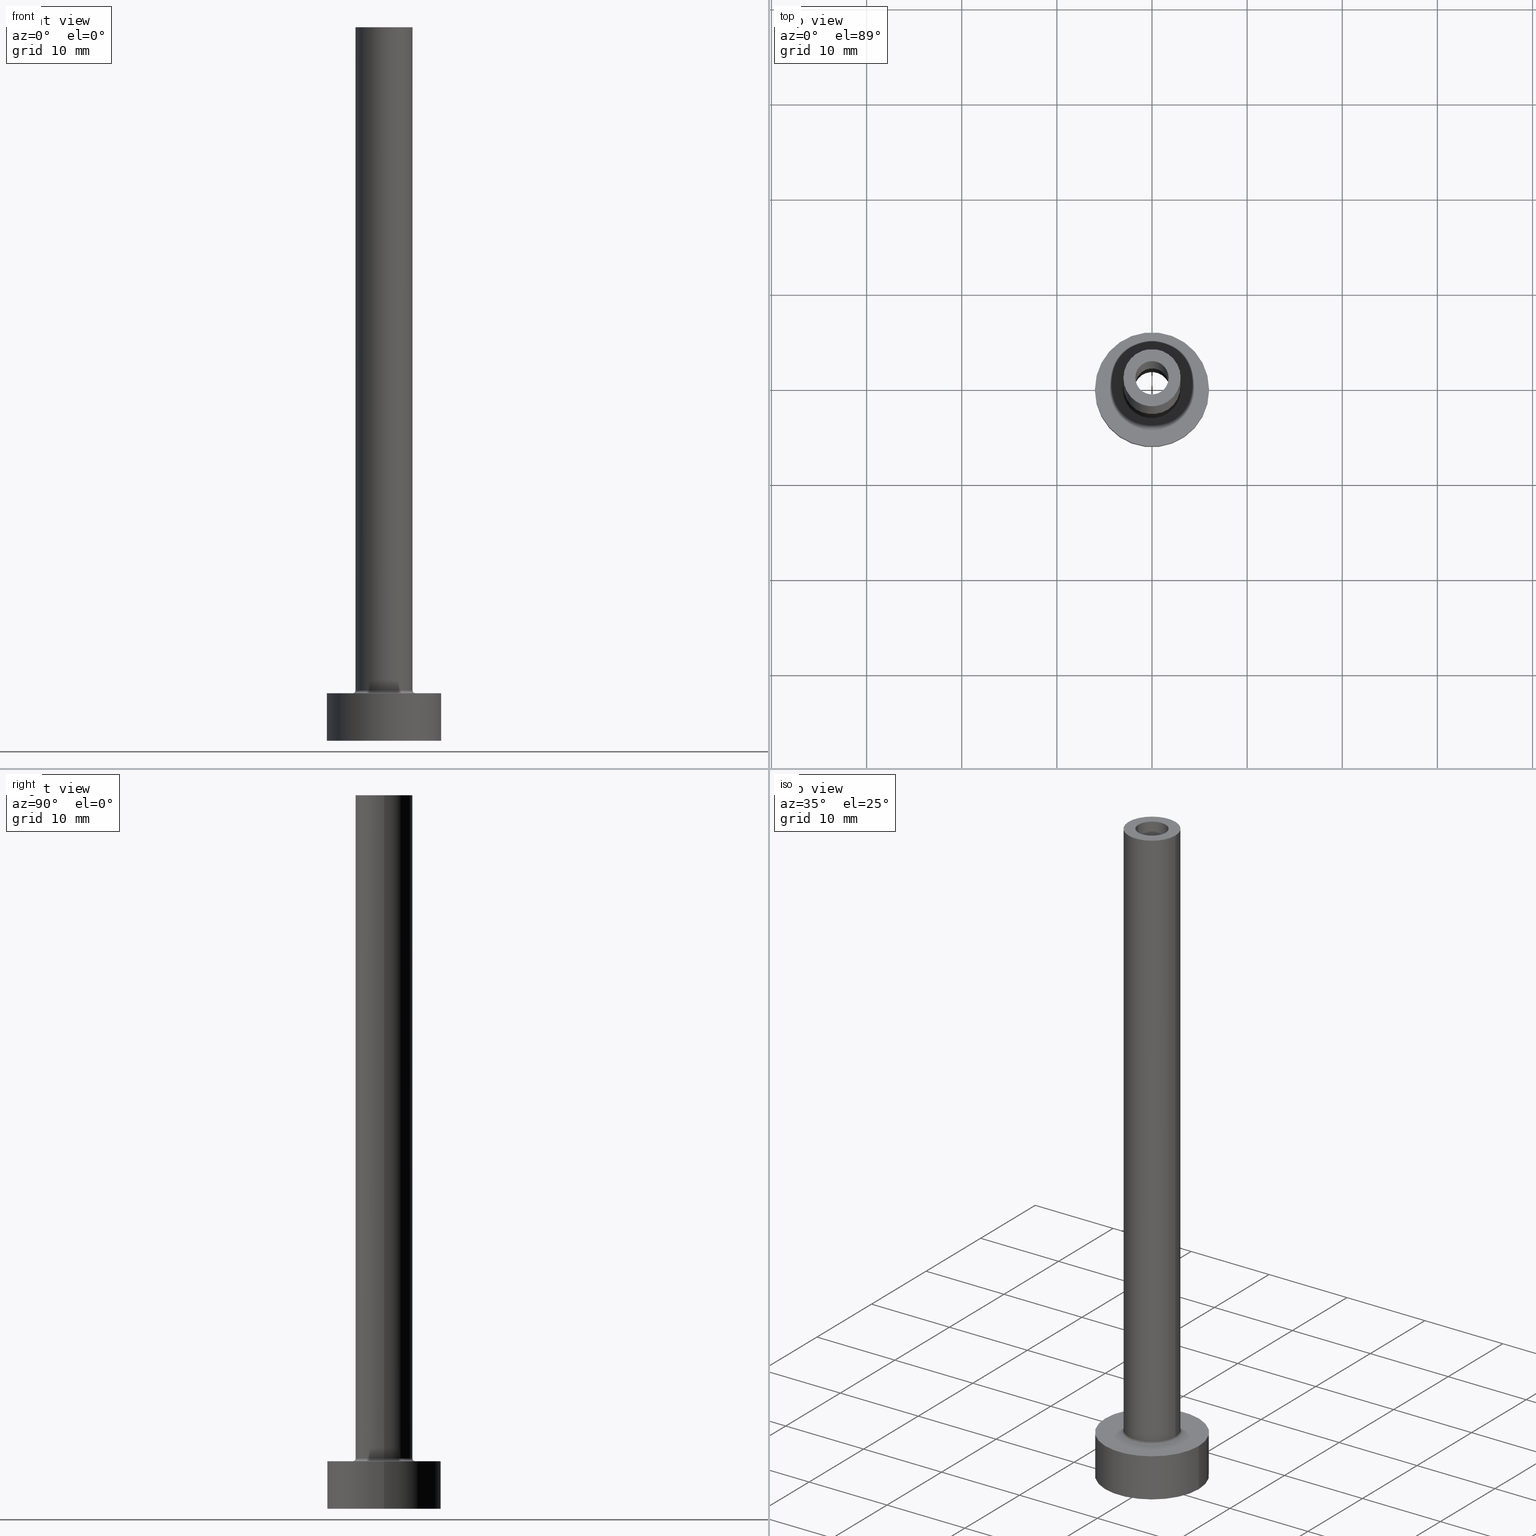
[diagram: canonical four-view strip — front | top / right | iso, engineering-drawing reading convention]
A machine part, canonical four-view strip (front | top / right | iso — engineering-drawing reading convention). The complete STEP part file that produces these views, byte-faithful:
ISO-10303-21;
HEADER;
FILE_DESCRIPTION (( 'STEP AP203' ),
    '1' );
FILE_NAME ('1971.STEP',
    '2023-02-13T12:01:50',
    ( '' ),
    ( '' ),
    'SwSTEP 2.0',
    'SolidWorks 2019',
    '' );
FILE_SCHEMA (( 'CONFIG_CONTROL_DESIGN' ));
ENDSEC;

DATA;
#1 = ADVANCED_FACE ( 'NONE', ( #296 ), #265, .F. ) ;
#2 = EDGE_CURVE ( 'NONE', #196, #254, #279, .T. ) ;
#3 = CARTESIAN_POINT ( 'NONE',  ( 1.750000000000000000, 2.143131898507867804E-16, 75.00000000000001421 ) ) ;
#4 = AXIS2_PLACEMENT_3D ( 'NONE', #121, #11, #15 ) ;
#5 = FACE_OUTER_BOUND ( 'NONE', #209, .T. ) ;
#6 = ORIENTED_EDGE ( 'NONE', *, *, #444, .T. ) ;
#7 = CARTESIAN_POINT ( 'NONE',  ( 0.000000000000000000, 0.000000000000000000, 5.000000000000000000 ) ) ;
#8 = VERTEX_POINT ( 'NONE', #87 ) ;
#9 = FACE_OUTER_BOUND ( 'NONE', #369, .T. ) ;
#10 = VERTEX_POINT ( 'NONE', #222 ) ;
#11 = DIRECTION ( 'NONE',  ( 0.000000000000000000, 0.000000000000000000, 1.000000000000000000 ) ) ;
#12 = ORIENTED_EDGE ( 'NONE', *, *, #421, .T. ) ;
#13 = DIRECTION ( 'NONE',  ( 0.000000000000000000, 0.000000000000000000, 1.000000000000000000 ) ) ;
#14 = EDGE_LOOP ( 'NONE', ( #261, #74, #185, #325 ) ) ;
#15 = DIRECTION ( 'NONE',  ( 1.000000000000000000, 0.000000000000000000, 0.000000000000000000 ) ) ;
#16 = ORIENTED_EDGE ( 'NONE', *, *, #89, .T. ) ;
#17 = VECTOR ( 'NONE', #292, 1000.000000000000000 ) ;
#18 = DIRECTION ( 'NONE',  ( -0.000000000000000000, -0.000000000000000000, -1.000000000000000000 ) ) ;
#19 = VERTEX_POINT ( 'NONE', #227 ) ;
#20 = ORIENTED_EDGE ( 'NONE', *, *, #143, .T. ) ;
#21 = DIRECTION ( 'NONE',  ( 0.000000000000000000, 0.000000000000000000, 1.000000000000000000 ) ) ;
#22 = PERSON_AND_ORGANIZATION ( #220, #165 ) ;
#23 = CIRCLE ( 'NONE', #321, 3.000000000000000444 ) ;
#24 = PLANE ( 'NONE',  #327 ) ;
#25 = APPROVAL_STATUS ( 'not_yet_approved' ) ;
#26 = DIRECTION ( 'NONE',  ( 1.000000000000000000, 0.000000000000000000, 0.000000000000000000 ) ) ;
#27 = EDGE_CURVE ( 'NONE', #217, #376, #436, .T. ) ;
#28 = CC_DESIGN_PERSON_AND_ORGANIZATION_ASSIGNMENT ( #300, #406, ( #117 ) ) ;
#29 = CALENDAR_DATE ( 2023, 13, 2 ) ;
#30 = DIRECTION ( 'NONE',  ( 0.000000000000000000, 0.000000000000000000, 1.000000000000000000 ) ) ;
#31 = PERSON_AND_ORGANIZATION_ROLE ( 'creator' ) ;
#32 = DIRECTION ( 'NONE',  ( 0.000000000000000000, 0.000000000000000000, -1.000000000000000000 ) ) ;
#33 = APPROVAL_PERSON_ORGANIZATION ( #226, #259, #56 ) ;
#34 = CC_DESIGN_DATE_AND_TIME_ASSIGNMENT ( #162, #133, ( #149 ) ) ;
#35 = FACE_OUTER_BOUND ( 'NONE', #114, .T. ) ;
#36 = ADVANCED_FACE ( 'NONE', ( #332, #157 ), #203, .T. ) ;
#37 = DIRECTION ( 'NONE',  ( 0.000000000000000000, 0.000000000000000000, 1.000000000000000000 ) ) ;
#38 = ORIENTED_EDGE ( 'NONE', *, *, #343, .T. ) ;
#39 = CARTESIAN_POINT ( 'NONE',  ( -6.000000000000000888, 0.000000000000000000, 5.000000000000000000 ) ) ;
#40 = AXIS2_PLACEMENT_3D ( 'NONE', #389, #178, #322 ) ;
#41 = AXIS2_PLACEMENT_3D ( 'NONE', #181, #255, #50 ) ;
#42 = CYLINDRICAL_SURFACE ( 'NONE', #345, 6.000000000000000888 ) ;
#43 = DIRECTION ( 'NONE',  ( 0.000000000000000000, 0.000000000000000000, -1.000000000000000000 ) ) ;
#44 = ORIENTED_EDGE ( 'NONE', *, *, #189, .F. ) ;
#45 = ADVANCED_FACE ( 'NONE', ( #382, #96 ), #197, .F. ) ;
#46 = FACE_OUTER_BOUND ( 'NONE', #193, .T. ) ;
#47 = ORIENTED_EDGE ( 'NONE', *, *, #392, .F. ) ;
#48 = AXIS2_PLACEMENT_3D ( 'NONE', #260, #18, #302 ) ;
#49 = ORIENTED_EDGE ( 'NONE', *, *, #109, .F. ) ;
#50 = DIRECTION ( 'NONE',  ( 1.000000000000000000, 0.000000000000000000, 0.000000000000000000 ) ) ;
#51 = ORIENTED_EDGE ( 'NONE', *, *, #134, .F. ) ;
#52 = CARTESIAN_POINT ( 'NONE',  ( 0.000000000000000000, 0.000000000000000000, 75.00000000000001421 ) ) ;
#53 = ORIENTED_EDGE ( 'NONE', *, *, #392, .T. ) ;
#54 = EDGE_CURVE ( 'NONE', #83, #425, #340, .T. ) ;
#55 = CIRCLE ( 'NONE', #299, 6.000000000000000888 ) ;
#56 = APPROVAL_ROLE ( '' ) ;
#57 = EDGE_LOOP ( 'NONE', ( #329, #20 ) ) ;
#58 = FACE_BOUND ( 'NONE', #399, .T. ) ;
#59 = PERSON_AND_ORGANIZATION_ROLE ( 'design_supplier' ) ;
#60 = CARTESIAN_POINT ( 'NONE',  ( 0.000000000000000000, 0.000000000000000000, 30.00000000000001421 ) ) ;
#61 = AXIS2_PLACEMENT_3D ( 'NONE', #257, #156, #186 ) ;
#62 = FACE_OUTER_BOUND ( 'NONE', #142, .T. ) ;
#63 = CC_DESIGN_PERSON_AND_ORGANIZATION_ASSIGNMENT ( #238, #346, ( #286 ) ) ;
#64 = ADVANCED_FACE ( 'NONE', ( #131 ), #66, .F. ) ;
#65 = DIRECTION ( 'NONE',  ( 1.224646799147353207E-16, 1.000000000000000000, -0.000000000000000000 ) ) ;
#66 = CYLINDRICAL_SURFACE ( 'NONE', #225, 1.750000000000000000 ) ;
#67 = CARTESIAN_POINT ( 'NONE',  ( 0.000000000000000000, 0.000000000000000000, 5.299999999999998934 ) ) ;
#68 = AXIS2_PLACEMENT_3D ( 'NONE', #81, #442, #398 ) ;
#69 = DIRECTION ( 'NONE',  ( -1.000000000000000000, 0.000000000000000000, 0.000000000000000000 ) ) ;
#70 = DIRECTION ( 'NONE',  ( 0.000000000000000000, 0.000000000000000000, 1.000000000000000000 ) ) ;
#71 = AXIS2_PLACEMENT_3D ( 'NONE', #309, #386, #349 ) ;
#72 = ORIENTED_EDGE ( 'NONE', *, *, #54, .F. ) ;
#73 = CARTESIAN_POINT ( 'NONE',  ( 3.000000000000000444, 3.673940397442060361E-16, 75.00000000000001421 ) ) ;
#74 = ORIENTED_EDGE ( 'NONE', *, *, #419, .T. ) ;
#75 = EDGE_CURVE ( 'NONE', #364, #19, #453, .T. ) ;
#76 = DIRECTION ( 'NONE',  ( 1.000000000000000000, 0.000000000000000000, 0.000000000000000000 ) ) ;
#77 =( NAMED_UNIT ( * ) SI_UNIT ( $, .STERADIAN. ) SOLID_ANGLE_UNIT ( ) );
#78 = AXIS2_PLACEMENT_3D ( 'NONE', #135, #271, #242 ) ;
#79 = ORIENTED_EDGE ( 'NONE', *, *, #2, .F. ) ;
#80 = AXIS2_PLACEMENT_3D ( 'NONE', #67, #247, #76 ) ;
#81 = CARTESIAN_POINT ( 'NONE',  ( 0.000000000000000000, 0.000000000000000000, 75.00000000000001421 ) ) ;
#82 = PRODUCT_RELATED_PRODUCT_CATEGORY ( 'detail', '', ( #117 ) ) ;
#83 = VERTEX_POINT ( 'NONE', #163 ) ;
#84 = ORIENTED_EDGE ( 'NONE', *, *, #417, .T. ) ;
#85 = VECTOR ( 'NONE', #167, 1000.000000000000000 ) ;
#86 = APPLICATION_PROTOCOL_DEFINITION ( 'international standard', 'config_control_design', 1994, #99 ) ;
#87 = CARTESIAN_POINT ( 'NONE',  ( -3.000000000000000444, 0.000000000000000000, 75.00000000000001421 ) ) ;
#88 = CIRCLE ( 'NONE', #40, 6.000000000000000888 ) ;
#89 = EDGE_CURVE ( 'NONE', #376, #217, #137, .T. ) ;
#90 = DIRECTION ( 'NONE',  ( 0.000000000000000000, 0.000000000000000000, -1.000000000000000000 ) ) ;
#91 = CARTESIAN_POINT ( 'NONE',  ( 0.000000000000000000, 0.000000000000000000, 5.000000000000000000 ) ) ;
#92 = CC_DESIGN_DATE_AND_TIME_ASSIGNMENT ( #93, #339, ( #286 ) ) ;
#93 = DATE_AND_TIME ( #457, #441 ) ;
#94 = CARTESIAN_POINT ( 'NONE',  ( -1.899999999999999911, 0.000000000000000000, 35.37401153701777190 ) ) ;
#95 = SHAPE_DEFINITION_REPRESENTATION ( #107, #164 ) ;
#96 = FACE_OUTER_BOUND ( 'NONE', #446, .T. ) ;
#97 = DIRECTION ( 'NONE',  ( 0.000000000000000000, 0.000000000000000000, -1.000000000000000000 ) ) ;
#98 = DIRECTION ( 'NONE',  ( 1.000000000000000000, 0.000000000000000000, 0.000000000000000000 ) ) ;
#99 = APPLICATION_CONTEXT ( 'configuration controlled 3d designs of mechanical parts and assemblies' ) ;
#100 = DIRECTION ( 'NONE',  ( 1.000000000000000000, 0.000000000000000000, 0.000000000000000000 ) ) ;
#101 = AXIS2_PLACEMENT_3D ( 'NONE', #361, #151, #113 ) ;
#102 = ORIENTED_EDGE ( 'NONE', *, *, #303, .T. ) ;
#103 = DIRECTION ( 'NONE',  ( 0.000000000000000000, 0.000000000000000000, -1.000000000000000000 ) ) ;
#104 = VERTEX_POINT ( 'NONE', #316 ) ;
#105 = ADVANCED_FACE ( 'NONE', ( #270 ), #206, .T. ) ;
#106 = DIRECTION ( 'NONE',  ( -1.000000000000000000, 0.000000000000000000, 0.000000000000000000 ) ) ;
#107 = PRODUCT_DEFINITION_SHAPE ( 'NONE', 'NONE',  #286 ) ;
#108 = EDGE_LOOP ( 'NONE', ( #408, #264, #293, #161 ) ) ;
#109 = EDGE_CURVE ( 'NONE', #425, #217, #130, .T. ) ;
#110 = DIRECTION ( 'NONE',  ( 1.000000000000000000, 0.000000000000000000, 0.000000000000000000 ) ) ;
#111 = VERTEX_POINT ( 'NONE', #347 ) ;
#112 = AXIS2_PLACEMENT_3D ( 'NONE', #445, #365, #184 ) ;
#113 = DIRECTION ( 'NONE',  ( 1.000000000000000000, 0.000000000000000000, 0.000000000000000000 ) ) ;
#114 = EDGE_LOOP ( 'NONE', ( #179, #288, #301, #175 ) ) ;
#115 = CARTESIAN_POINT ( 'NONE',  ( -1.750000000000000000, 0.000000000000000000, 30.00000000000001421 ) ) ;
#116 = ORIENTED_EDGE ( 'NONE', *, *, #303, .F. ) ;
#117 = PRODUCT ( '1971', '1971', '', ( #191 ) ) ;
#118 = CYLINDRICAL_SURFACE ( 'NONE', #48, 6.000000000000000888 ) ;
#119 = CARTESIAN_POINT ( 'NONE',  ( 3.300000000000000266, 0.000000000000000000, 5.299999999999998934 ) ) ;
#120 = CC_DESIGN_SECURITY_CLASSIFICATION ( #149, ( #460 ) ) ;
#121 = CARTESIAN_POINT ( 'NONE',  ( 0.000000000000000000, 0.000000000000000000, 75.00000000000001421 ) ) ;
#122 = ORIENTED_EDGE ( 'NONE', *, *, #89, .F. ) ;
#123 = EDGE_LOOP ( 'NONE', ( #154, #443, #246, #145 ) ) ;
#124 = UNCERTAINTY_MEASURE_WITH_UNIT (LENGTH_MEASURE( 1.000000000000000082E-05 ), #195, 'distance_accuracy_value', 'NONE');
#125 = ORIENTED_EDGE ( 'NONE', *, *, #338, .F. ) ;
#126 = AXIS2_PLACEMENT_3D ( 'NONE', #176, #43, #106 ) ;
#127 = COORDINATED_UNIVERSAL_TIME_OFFSET ( 1, 0, .AHEAD. ) ;
#128 = DIRECTION ( 'NONE',  ( 1.000000000000000000, 0.000000000000000000, 0.000000000000000000 ) ) ;
#129 = EDGE_CURVE ( 'NONE', #337, #435, #318, .T. ) ;
#130 = LINE ( 'NONE', #94, #405 ) ;
#131 = FACE_OUTER_BOUND ( 'NONE', #430, .T. ) ;
#132 = APPROVAL_PERSON_ORGANIZATION ( #269, #323, #166 ) ;
#133 = DATE_TIME_ROLE ( 'classification_date' ) ;
#134 = EDGE_CURVE ( 'NONE', #10, #196, #439, .T. ) ;
#135 = CARTESIAN_POINT ( 'NONE',  ( 0.000000000000000000, 0.000000000000000000, 5.000000000000000000 ) ) ;
#136 = CARTESIAN_POINT ( 'NONE',  ( 0.000000000000000000, 0.000000000000000000, 0.000000000000000000 ) ) ;
#137 = CIRCLE ( 'NONE', #198, 1.899999999999999911 ) ;
#138 = CARTESIAN_POINT ( 'NONE',  ( 0.000000000000000000, 0.000000000000000000, 5.000000000000000000 ) ) ;
#139 = MANIFOLD_SOLID_BREP ( 'Odebrat vysunut�m4', #155 ) ;
#140 = DIRECTION ( 'NONE',  ( -0.000000000000000000, -0.000000000000000000, -1.000000000000000000 ) ) ;
#141 = VECTOR ( 'NONE', #140, 1000.000000000000000 ) ;
#142 = EDGE_LOOP ( 'NONE', ( #44, #72 ) ) ;
#143 = EDGE_CURVE ( 'NONE', #111, #364, #297, .T. ) ;
#144 = DIRECTION ( 'NONE',  ( 0.000000000000000000, 0.000000000000000000, -1.000000000000000000 ) ) ;
#145 = ORIENTED_EDGE ( 'NONE', *, *, #417, .F. ) ;
#146 = DIRECTION ( 'NONE',  ( 1.000000000000000000, 0.000000000000000000, 0.000000000000000000 ) ) ;
#147 = ORIENTED_EDGE ( 'NONE', *, *, #444, .F. ) ;
#148 = ORIENTED_EDGE ( 'NONE', *, *, #190, .F. ) ;
#149 = SECURITY_CLASSIFICATION ( '', '', #454 ) ;
#150 = EDGE_CURVE ( 'NONE', #83, #376, #378, .T. ) ;
#151 = DIRECTION ( 'NONE',  ( 0.000000000000000000, 0.000000000000000000, 1.000000000000000000 ) ) ;
#152 = VERTEX_POINT ( 'NONE', #385 ) ;
#153 = DIRECTION ( 'NONE',  ( 1.000000000000000000, 0.000000000000000000, 0.000000000000000000 ) ) ;
#154 = ORIENTED_EDGE ( 'NONE', *, *, #187, .F. ) ;
#155 = CLOSED_SHELL ( 'NONE', ( #64, #205, #192, #456, #411, #241, #36, #45, #105, #310, #333, #335, #170, #1 ) ) ;
#156 = DIRECTION ( 'NONE',  ( -0.000000000000000000, -0.000000000000000000, -1.000000000000000000 ) ) ;
#157 = FACE_OUTER_BOUND ( 'NONE', #57, .T. ) ;
#158 = CIRCLE ( 'NONE', #416, 0.2999999999999999334 ) ;
#159 = CC_DESIGN_PERSON_AND_ORGANIZATION_ASSIGNMENT ( #410, #31, ( #460 ) ) ;
#160 = VERTEX_POINT ( 'NONE', #233 ) ;
#161 = ORIENTED_EDGE ( 'NONE', *, *, #27, .T. ) ;
#162 = DATE_AND_TIME ( #201, #268 ) ;
#163 = CARTESIAN_POINT ( 'NONE',  ( 1.899999999999999911, 2.326828918379971365E-16, 30.00000000000001421 ) ) ;
#164 = ADVANCED_BREP_SHAPE_REPRESENTATION ( '1971', ( #139, #112 ), #367 ) ;
#165 = ORGANIZATION ( 'NEUR�EN�', 'NEUR�EN�', '' ) ;
#166 = APPROVAL_ROLE ( '' ) ;
#167 = DIRECTION ( 'NONE',  ( -0.000000000000000000, -0.000000000000000000, -1.000000000000000000 ) ) ;
#168 = CARTESIAN_POINT ( 'NONE',  ( 0.000000000000000000, 0.000000000000000000, 30.00000000000001421 ) ) ;
#169 = DIRECTION ( 'NONE',  ( -1.000000000000000000, 1.224646799147353207E-16, 0.000000000000000000 ) ) ;
#170 = ADVANCED_FACE ( 'NONE', ( #58, #62 ), #24, .F. ) ;
#171 = CARTESIAN_POINT ( 'NONE',  ( 0.000000000000000000, 0.000000000000000000, 75.00000000000001421 ) ) ;
#172 = FACE_BOUND ( 'NONE', #372, .T. ) ;
#173 = EDGE_LOOP ( 'NONE', ( #258, #250, #16, #49 ) ) ;
#174 = DIRECTION ( 'NONE',  ( -0.000000000000000000, -0.000000000000000000, -1.000000000000000000 ) ) ;
#175 = ORIENTED_EDGE ( 'NONE', *, *, #338, .T. ) ;
#176 = CARTESIAN_POINT ( 'NONE',  ( 0.000000000000000000, 0.000000000000000000, 35.37401153701777190 ) ) ;
#177 = LOCAL_TIME ( 13, 1, 50.00000000000000000, #348 ) ;
#178 = DIRECTION ( 'NONE',  ( 0.000000000000000000, 0.000000000000000000, 1.000000000000000000 ) ) ;
#179 = ORIENTED_EDGE ( 'NONE', *, *, #295, .F. ) ;
#180 = DIRECTION ( 'NONE',  ( 1.000000000000000000, 0.000000000000000000, -0.000000000000000000 ) ) ;
#181 = CARTESIAN_POINT ( 'NONE',  ( 0.000000000000000000, 0.000000000000000000, 75.00000000000001421 ) ) ;
#182 = ORIENTED_EDGE ( 'NONE', *, *, #134, .T. ) ;
#183 = AXIS2_PLACEMENT_3D ( 'NONE', #208, #37, #110 ) ;
#184 = DIRECTION ( 'NONE',  ( 1.000000000000000000, 0.000000000000000000, 0.000000000000000000 ) ) ;
#185 = ORIENTED_EDGE ( 'NONE', *, *, #328, .T. ) ;
#186 = DIRECTION ( 'NONE',  ( 1.000000000000000000, 0.000000000000000000, 0.000000000000000000 ) ) ;
#187 = EDGE_CURVE ( 'NONE', #390, #8, #23, .T. ) ;
#188 = DIRECTION ( 'NONE',  ( 1.000000000000000000, 0.000000000000000000, 0.000000000000000000 ) ) ;
#189 = EDGE_CURVE ( 'NONE', #425, #83, #423, .T. ) ;
#190 = EDGE_CURVE ( 'NONE', #10, #104, #158, .T. ) ;
#191 = MECHANICAL_CONTEXT ( 'NONE', #426, 'mechanical' ) ;
#192 = ADVANCED_FACE ( 'NONE', ( #252 ), #244, .F. ) ;
#193 = EDGE_LOOP ( 'NONE', ( #334, #218, #38, #394 ) ) ;
#194 = AXIS2_PLACEMENT_3D ( 'NONE', #52, #294, #437 ) ;
#195 =( LENGTH_UNIT ( ) NAMED_UNIT ( * ) SI_UNIT ( .MILLI., .METRE. ) );
#196 = VERTEX_POINT ( 'NONE', #283 ) ;
#197 = PLANE ( 'NONE',  #312 ) ;
#198 = AXIS2_PLACEMENT_3D ( 'NONE', #418, #232, #306 ) ;
#199 = DIRECTION ( 'NONE',  ( 0.000000000000000000, 0.000000000000000000, 1.000000000000000000 ) ) ;
#200 = CIRCLE ( 'NONE', #4, 1.750000000000000000 ) ;
#201 = CALENDAR_DATE ( 2023, 13, 2 ) ;
#202 = DIRECTION ( 'NONE',  ( 1.000000000000000000, 0.000000000000000000, 0.000000000000000000 ) ) ;
#203 = PLANE ( 'NONE',  #78 ) ;
#204 = AXIS2_PLACEMENT_3D ( 'NONE', #230, #370, #188 ) ;
#205 = ADVANCED_FACE ( 'NONE', ( #284 ), #354, .F. ) ;
#206 = CYLINDRICAL_SURFACE ( 'NONE', #350, 3.000000000000000444 ) ;
#207 = DIRECTION ( 'NONE',  ( -0.000000000000000000, -0.000000000000000000, -1.000000000000000000 ) ) ;
#208 = CARTESIAN_POINT ( 'NONE',  ( 0.000000000000000000, 0.000000000000000000, 0.000000000000000000 ) ) ;
#209 = EDGE_LOOP ( 'NONE', ( #12, #211 ) ) ;
#210 = LINE ( 'NONE', #396, #141 ) ;
#211 = ORIENTED_EDGE ( 'NONE', *, *, #187, .T. ) ;
#212 = AXIS2_PLACEMENT_3D ( 'NONE', #216, #363, #180 ) ;
#213 = LINE ( 'NONE', #3, #236 ) ;
#214 = CC_DESIGN_APPROVAL ( #409, ( #149 ) ) ;
#215 = ORIENTED_EDGE ( 'NONE', *, *, #448, .T. ) ;
#216 = CARTESIAN_POINT ( 'NONE',  ( 0.000000000000000000, 0.000000000000000000, 75.00000000000001421 ) ) ;
#217 = VERTEX_POINT ( 'NONE', #429 ) ;
#218 = ORIENTED_EDGE ( 'NONE', *, *, #295, .T. ) ;
#219 = AXIS2_PLACEMENT_3D ( 'NONE', #7, #174, #245 ) ;
#220 = PERSON ( 'NEUR�EN�', 'NEUR�EN�', 'NEUR�EN�', ('NEUR�EN�'), ('NEUR�EN�'), ('NEUR�EN�') ) ;
#221 = CARTESIAN_POINT ( 'NONE',  ( -1.899999999999999911, 0.000000000000000000, 30.00000000000001421 ) ) ;
#222 = CARTESIAN_POINT ( 'NONE',  ( -3.000000000000000444, 0.000000000000000000, 5.299999999999998934 ) ) ;
#223 = CYLINDRICAL_SURFACE ( 'NONE', #194, 3.000000000000000444 ) ;
#224 = ORIENTED_EDGE ( 'NONE', *, *, #190, .T. ) ;
#225 = AXIS2_PLACEMENT_3D ( 'NONE', #352, #32, #314 ) ;
#226 = PERSON_AND_ORGANIZATION ( #220, #165 ) ;
#227 = CARTESIAN_POINT ( 'NONE',  ( -6.000000000000000888, 0.000000000000000000, 0.000000000000000000 ) ) ;
#228 = CIRCLE ( 'NONE', #183, 6.000000000000000888 ) ;
#229 = COORDINATED_UNIVERSAL_TIME_OFFSET ( 1, 0, .AHEAD. ) ;
#230 = CARTESIAN_POINT ( 'NONE',  ( 0.000000000000000000, 0.000000000000000000, 0.000000000000000000 ) ) ;
#231 = APPROVAL_STATUS ( 'not_yet_approved' ) ;
#232 = DIRECTION ( 'NONE',  ( -0.000000000000000000, -0.000000000000000000, -1.000000000000000000 ) ) ;
#233 = CARTESIAN_POINT ( 'NONE',  ( 1.750000000000000000, 2.143131898507867804E-16, 75.00000000000001421 ) ) ;
#234 = AXIS2_PLACEMENT_3D ( 'NONE', #420, #199, #98 ) ;
#235 = AXIS2_PLACEMENT_3D ( 'NONE', #168, #277, #128 ) ;
#236 = VECTOR ( 'NONE', #144, 1000.000000000000000 ) ;
#237 = APPROVAL_PERSON_ORGANIZATION ( #342, #409, #308 ) ;
#238 = PERSON_AND_ORGANIZATION ( #220, #165 ) ;
#239 = EDGE_CURVE ( 'NONE', #196, #10, #388, .T. ) ;
#240 = CARTESIAN_POINT ( 'NONE',  ( 0.000000000000000000, 0.000000000000000000, 75.00000000000001421 ) ) ;
#241 = ADVANCED_FACE ( 'NONE', ( #35 ), #42, .T. ) ;
#242 = DIRECTION ( 'NONE',  ( 1.000000000000000000, 0.000000000000000000, -0.000000000000000000 ) ) ;
#243 = LINE ( 'NONE', #324, #450 ) ;
#244 = TOROIDAL_SURFACE ( 'NONE', #80, 3.300000000000000266, 0.2999999999999999889 ) ;
#245 = DIRECTION ( 'NONE',  ( 1.000000000000000000, 0.000000000000000000, 0.000000000000000000 ) ) ;
#246 = ORIENTED_EDGE ( 'NONE', *, *, #239, .T. ) ;
#247 = DIRECTION ( 'NONE',  ( 0.000000000000000000, 0.000000000000000000, 1.000000000000000000 ) ) ;
#248 = ORIENTED_EDGE ( 'NONE', *, *, #239, .F. ) ;
#249 = DIRECTION ( 'NONE',  ( -1.000000000000000000, 0.000000000000000000, 0.000000000000000000 ) ) ;
#250 = ORIENTED_EDGE ( 'NONE', *, *, #150, .T. ) ;
#251 = CC_DESIGN_APPROVAL ( #259, ( #286 ) ) ;
#252 = FACE_OUTER_BOUND ( 'NONE', #267, .T. ) ;
#253 = CC_DESIGN_PERSON_AND_ORGANIZATION_ASSIGNMENT ( #22, #59, ( #460 ) ) ;
#254 = VERTEX_POINT ( 'NONE', #319 ) ;
#255 = DIRECTION ( 'NONE',  ( 0.000000000000000000, 0.000000000000000000, 1.000000000000000000 ) ) ;
#256 = AXIS2_PLACEMENT_3D ( 'NONE', #119, #402, #90 ) ;
#257 = CARTESIAN_POINT ( 'NONE',  ( 0.000000000000000000, 0.000000000000000000, 5.000000000000000000 ) ) ;
#258 = ORIENTED_EDGE ( 'NONE', *, *, #189, .T. ) ;
#259 = APPROVAL ( #374, 'NEUR�EN�' ) ;
#260 = CARTESIAN_POINT ( 'NONE',  ( 0.000000000000000000, 0.000000000000000000, 5.000000000000000000 ) ) ;
#261 = ORIENTED_EDGE ( 'NONE', *, *, #373, .F. ) ;
#262 = CIRCLE ( 'NONE', #61, 3.300000000000000266 ) ;
#263 = LINE ( 'NONE', #403, #17 ) ;
#264 = ORIENTED_EDGE ( 'NONE', *, *, #54, .T. ) ;
#265 = CYLINDRICAL_SURFACE ( 'NONE', #280, 1.750000000000000000 ) ;
#266 = PERSON_AND_ORGANIZATION_ROLE ( 'classification_officer' ) ;
#267 = EDGE_LOOP ( 'NONE', ( #51, #224, #116, #79 ) ) ;
#268 = LOCAL_TIME ( 13, 1, 50.00000000000000000, #379 ) ;
#269 = PERSON_AND_ORGANIZATION ( #220, #165 ) ;
#270 = FACE_OUTER_BOUND ( 'NONE', #404, .T. ) ;
#271 = DIRECTION ( 'NONE',  ( 0.000000000000000000, 0.000000000000000000, 1.000000000000000000 ) ) ;
#272 = CALENDAR_DATE ( 2023, 13, 2 ) ;
#273 = EDGE_CURVE ( 'NONE', #390, #196, #210, .T. ) ;
#274 = DIRECTION ( 'NONE',  ( 0.000000000000000000, 0.000000000000000000, 1.000000000000000000 ) ) ;
#275 = CIRCLE ( 'NONE', #68, 1.750000000000000000 ) ;
#276 = COORDINATED_UNIVERSAL_TIME_OFFSET ( 1, 0, .AHEAD. ) ;
#277 = DIRECTION ( 'NONE',  ( 0.000000000000000000, 0.000000000000000000, 1.000000000000000000 ) ) ;
#278 = DIRECTION ( 'NONE',  ( -1.000000000000000000, 0.000000000000000000, 0.000000000000000000 ) ) ;
#279 = CIRCLE ( 'NONE', #256, 0.2999999999999999334 ) ;
#280 = AXIS2_PLACEMENT_3D ( 'NONE', #298, #407, #438 ) ;
#281 = CARTESIAN_POINT ( 'NONE',  ( -1.750000000000000000, 0.000000000000000000, 75.00000000000001421 ) ) ;
#282 = AXIS2_PLACEMENT_3D ( 'NONE', #60, #344, #202 ) ;
#283 = CARTESIAN_POINT ( 'NONE',  ( 3.000000000000000444, 3.673940397442060361E-16, 5.299999999999998934 ) ) ;
#284 = FACE_OUTER_BOUND ( 'NONE', #173, .T. ) ;
#285 = ORIENTED_EDGE ( 'NONE', *, *, #448, .F. ) ;
#286 = PRODUCT_DEFINITION ( 'NEZN�M�', '', #460, #431 ) ;
#287 = DIRECTION ( 'NONE',  ( 0.000000000000000000, 0.000000000000000000, 1.000000000000000000 ) ) ;
#288 = ORIENTED_EDGE ( 'NONE', *, *, #440, .F. ) ;
#289 = AXIS2_PLACEMENT_3D ( 'NONE', #393, #287, #100 ) ;
#290 = DIRECTION ( 'NONE',  ( -0.000000000000000000, -0.000000000000000000, -1.000000000000000000 ) ) ;
#291 = ORIENTED_EDGE ( 'NONE', *, *, #328, .F. ) ;
#292 = DIRECTION ( 'NONE',  ( -0.000000000000000000, -0.000000000000000000, -1.000000000000000000 ) ) ;
#293 = ORIENTED_EDGE ( 'NONE', *, *, #109, .T. ) ;
#294 = DIRECTION ( 'NONE',  ( -0.000000000000000000, -0.000000000000000000, -1.000000000000000000 ) ) ;
#295 = EDGE_CURVE ( 'NONE', #111, #304, #243, .T. ) ;
#296 = FACE_OUTER_BOUND ( 'NONE', #14, .T. ) ;
#297 = CIRCLE ( 'NONE', #359, 6.000000000000000888 ) ;
#298 = CARTESIAN_POINT ( 'NONE',  ( 0.000000000000000000, 0.000000000000000000, 75.00000000000001421 ) ) ;
#299 = AXIS2_PLACEMENT_3D ( 'NONE', #336, #13, #153 ) ;
#300 = PERSON_AND_ORGANIZATION ( #220, #165 ) ;
#301 = ORIENTED_EDGE ( 'NONE', *, *, #75, .T. ) ;
#302 = DIRECTION ( 'NONE',  ( -1.000000000000000000, 0.000000000000000000, 0.000000000000000000 ) ) ;
#303 = EDGE_CURVE ( 'NONE', #254, #104, #360, .T. ) ;
#304 = VERTEX_POINT ( 'NONE', #357 ) ;
#305 = APPROVAL_DATE_TIME ( #452, #409 ) ;
#306 = DIRECTION ( 'NONE',  ( 1.000000000000000000, 0.000000000000000000, 0.000000000000000000 ) ) ;
#307 = CIRCLE ( 'NONE', #101, 1.750000000000000000 ) ;
#308 = APPROVAL_ROLE ( '' ) ;
#309 = CARTESIAN_POINT ( 'NONE',  ( 0.000000000000000000, 0.000000000000000000, 30.00000000000001421 ) ) ;
#310 = ADVANCED_FACE ( 'NONE', ( #172, #5 ), #317, .T. ) ;
#311 = DIRECTION ( 'NONE',  ( 1.000000000000000000, 0.000000000000000000, 0.000000000000000000 ) ) ;
#312 = AXIS2_PLACEMENT_3D ( 'NONE', #136, #21, #413 ) ;
#313 = DATE_AND_TIME ( #384, #432 ) ;
#314 = DIRECTION ( 'NONE',  ( -1.000000000000000000, 0.000000000000000000, 0.000000000000000000 ) ) ;
#315 = VECTOR ( 'NONE', #326, 1000.000000000000000 ) ;
#316 = CARTESIAN_POINT ( 'NONE',  ( -3.300000000000000266, 4.041334437186266003E-16, 4.999999999999999112 ) ) ;
#317 = PLANE ( 'NONE',  #212 ) ;
#318 = CIRCLE ( 'NONE', #235, 1.750000000000000000 ) ;
#319 = CARTESIAN_POINT ( 'NONE',  ( 3.300000000000000266, 0.000000000000000000, 4.999999999999999112 ) ) ;
#320 = ORIENTED_EDGE ( 'NONE', *, *, #343, .F. ) ;
#321 = AXIS2_PLACEMENT_3D ( 'NONE', #240, #30, #26 ) ;
#322 = DIRECTION ( 'NONE',  ( 1.000000000000000000, 0.000000000000000000, 0.000000000000000000 ) ) ;
#323 = APPROVAL ( #231, 'NEUR�EN�' ) ;
#324 = CARTESIAN_POINT ( 'NONE',  ( 6.000000000000000888, 7.347880794884120722E-16, 5.000000000000000000 ) ) ;
#325 = ORIENTED_EDGE ( 'NONE', *, *, #129, .F. ) ;
#326 = DIRECTION ( 'NONE',  ( 0.000000000000000000, 0.000000000000000000, -1.000000000000000000 ) ) ;
#327 = AXIS2_PLACEMENT_3D ( 'NONE', #412, #274, #380 ) ;
#328 = EDGE_CURVE ( 'NONE', #152, #435, #424, .T. ) ;
#329 = ORIENTED_EDGE ( 'NONE', *, *, #440, .T. ) ;
#330 = ORIENTED_EDGE ( 'NONE', *, *, #419, .F. ) ;
#331 =( NAMED_UNIT ( * ) PLANE_ANGLE_UNIT ( ) SI_UNIT ( $, .RADIAN. ) );
#332 = FACE_BOUND ( 'NONE', #358, .T. ) ;
#333 = ADVANCED_FACE ( 'NONE', ( #9 ), #375, .F. ) ;
#334 = ORIENTED_EDGE ( 'NONE', *, *, #143, .F. ) ;
#335 = ADVANCED_FACE ( 'NONE', ( #355 ), #433, .F. ) ;
#336 = CARTESIAN_POINT ( 'NONE',  ( 0.000000000000000000, 0.000000000000000000, 5.000000000000000000 ) ) ;
#337 = VERTEX_POINT ( 'NONE', #387 ) ;
#338 = EDGE_CURVE ( 'NONE', #19, #304, #88, .T. ) ;
#339 = DATE_TIME_ROLE ( 'creation_date' ) ;
#340 = CIRCLE ( 'NONE', #71, 1.899999999999999911 ) ;
#341 = CARTESIAN_POINT ( 'NONE',  ( -6.000000000000000888, 0.000000000000000000, 5.000000000000000000 ) ) ;
#342 = PERSON_AND_ORGANIZATION ( #220, #165 ) ;
#343 = EDGE_CURVE ( 'NONE', #304, #19, #228, .T. ) ;
#344 = DIRECTION ( 'NONE',  ( 0.000000000000000000, 0.000000000000000000, 1.000000000000000000 ) ) ;
#345 = AXIS2_PLACEMENT_3D ( 'NONE', #138, #207, #69 ) ;
#346 = PERSON_AND_ORGANIZATION_ROLE ( 'creator' ) ;
#347 = CARTESIAN_POINT ( 'NONE',  ( 6.000000000000000888, 7.347880794884120722E-16, 5.000000000000000000 ) ) ;
#348 = COORDINATED_UNIVERSAL_TIME_OFFSET ( 1, 0, .AHEAD. ) ;
#349 = DIRECTION ( 'NONE',  ( 1.000000000000000000, 0.000000000000000000, 0.000000000000000000 ) ) ;
#350 = AXIS2_PLACEMENT_3D ( 'NONE', #171, #461, #278 ) ;
#351 = DATE_AND_TIME ( #272, #177 ) ;
#352 = CARTESIAN_POINT ( 'NONE',  ( 0.000000000000000000, 0.000000000000000000, 75.00000000000001421 ) ) ;
#353 = CC_DESIGN_APPROVAL ( #323, ( #460 ) ) ;
#354 = CYLINDRICAL_SURFACE ( 'NONE', #126, 1.899999999999999911 ) ;
#355 = FACE_OUTER_BOUND ( 'NONE', #108, .T. ) ;
#356 = EDGE_LOOP ( 'NONE', ( #362, #122 ) ) ;
#357 = CARTESIAN_POINT ( 'NONE',  ( 6.000000000000000888, 7.347880794884120722E-16, 0.000000000000000000 ) ) ;
#358 = EDGE_LOOP ( 'NONE', ( #102, #6 ) ) ;
#359 = AXIS2_PLACEMENT_3D ( 'NONE', #91, #415, #311 ) ;
#360 = CIRCLE ( 'NONE', #219, 3.300000000000000266 ) ;
#361 = CARTESIAN_POINT ( 'NONE',  ( 0.000000000000000000, 0.000000000000000000, 30.00000000000001421 ) ) ;
#362 = ORIENTED_EDGE ( 'NONE', *, *, #27, .F. ) ;
#363 = DIRECTION ( 'NONE',  ( 0.000000000000000000, 0.000000000000000000, 1.000000000000000000 ) ) ;
#364 = VERTEX_POINT ( 'NONE', #39 ) ;
#365 = DIRECTION ( 'NONE',  ( 0.000000000000000000, 0.000000000000000000, 1.000000000000000000 ) ) ;
#366 = ORIENTED_EDGE ( 'NONE', *, *, #129, .T. ) ;
#367 =( GEOMETRIC_REPRESENTATION_CONTEXT ( 3 ) GLOBAL_UNCERTAINTY_ASSIGNED_CONTEXT ( ( #124 ) ) GLOBAL_UNIT_ASSIGNED_CONTEXT ( ( #195, #331, #77 ) ) REPRESENTATION_CONTEXT ( 'NONE', 'WORKASPACE' ) );
#368 = FACE_OUTER_BOUND ( 'NONE', #123, .T. ) ;
#369 = EDGE_LOOP ( 'NONE', ( #148, #248, #428, #147 ) ) ;
#370 = DIRECTION ( 'NONE',  ( -0.000000000000000000, -0.000000000000000000, -1.000000000000000000 ) ) ;
#371 = APPLICATION_PROTOCOL_DEFINITION ( 'international standard', 'config_control_design', 1994, #426 ) ;
#372 = EDGE_LOOP ( 'NONE', ( #285, #330 ) ) ;
#373 = EDGE_CURVE ( 'NONE', #160, #337, #213, .T. ) ;
#374 = APPROVAL_STATUS ( 'not_yet_approved' ) ;
#375 = TOROIDAL_SURFACE ( 'NONE', #289, 3.300000000000000266, 0.2999999999999999889 ) ;
#376 = VERTEX_POINT ( 'NONE', #427 ) ;
#377 = PERSON_AND_ORGANIZATION ( #220, #165 ) ;
#378 = LINE ( 'NONE', #451, #414 ) ;
#379 = COORDINATED_UNIVERSAL_TIME_OFFSET ( 1, 0, .AHEAD. ) ;
#380 = DIRECTION ( 'NONE',  ( 1.000000000000000000, 0.000000000000000000, -0.000000000000000000 ) ) ;
#381 = APPROVAL_DATE_TIME ( #313, #323 ) ;
#382 = FACE_BOUND ( 'NONE', #356, .T. ) ;
#383 = AXIS2_PLACEMENT_3D ( 'NONE', #391, #70, #146 ) ;
#384 = CALENDAR_DATE ( 2023, 13, 2 ) ;
#385 = CARTESIAN_POINT ( 'NONE',  ( -1.750000000000000000, 0.000000000000000000, 75.00000000000001421 ) ) ;
#386 = DIRECTION ( 'NONE',  ( 0.000000000000000000, 0.000000000000000000, 1.000000000000000000 ) ) ;
#387 = CARTESIAN_POINT ( 'NONE',  ( 1.750000000000000000, 2.143131898507867804E-16, 30.00000000000001421 ) ) ;
#388 = CIRCLE ( 'NONE', #383, 3.000000000000000444 ) ;
#389 = CARTESIAN_POINT ( 'NONE',  ( 0.000000000000000000, 0.000000000000000000, 0.000000000000000000 ) ) ;
#390 = VERTEX_POINT ( 'NONE', #73 ) ;
#391 = CARTESIAN_POINT ( 'NONE',  ( 0.000000000000000000, 0.000000000000000000, 5.299999999999998934 ) ) ;
#392 = EDGE_CURVE ( 'NONE', #435, #337, #307, .T. ) ;
#393 = CARTESIAN_POINT ( 'NONE',  ( 0.000000000000000000, 0.000000000000000000, 5.299999999999998934 ) ) ;
#394 = ORIENTED_EDGE ( 'NONE', *, *, #75, .F. ) ;
#395 = CIRCLE ( 'NONE', #41, 3.000000000000000444 ) ;
#396 = CARTESIAN_POINT ( 'NONE',  ( 3.000000000000000444, 3.673940397442060361E-16, 75.00000000000001421 ) ) ;
#397 = ORIENTED_EDGE ( 'NONE', *, *, #421, .F. ) ;
#398 = DIRECTION ( 'NONE',  ( 1.000000000000000000, 0.000000000000000000, 0.000000000000000000 ) ) ;
#399 = EDGE_LOOP ( 'NONE', ( #53, #366 ) ) ;
#400 = AXIS2_PLACEMENT_3D ( 'NONE', #422, #103, #249 ) ;
#401 = LOCAL_TIME ( 13, 1, 50.00000000000000000, #276 ) ;
#402 = DIRECTION ( 'NONE',  ( 0.000000000000000000, -1.000000000000000000, 0.000000000000000000 ) ) ;
#403 = CARTESIAN_POINT ( 'NONE',  ( -3.000000000000000444, 0.000000000000000000, 75.00000000000001421 ) ) ;
#404 = EDGE_LOOP ( 'NONE', ( #434, #397, #84, #182 ) ) ;
#405 = VECTOR ( 'NONE', #97, 1000.000000000000000 ) ;
#406 = PERSON_AND_ORGANIZATION_ROLE ( 'design_owner' ) ;
#407 = DIRECTION ( 'NONE',  ( 0.000000000000000000, 0.000000000000000000, -1.000000000000000000 ) ) ;
#408 = ORIENTED_EDGE ( 'NONE', *, *, #150, .F. ) ;
#409 = APPROVAL ( #25, 'NEUR�EN�' ) ;
#410 = PERSON_AND_ORGANIZATION ( #220, #165 ) ;
#411 = ADVANCED_FACE ( 'NONE', ( #46 ), #118, .T. ) ;
#412 = CARTESIAN_POINT ( 'NONE',  ( 0.000000000000000000, 0.000000000000000000, 30.00000000000001421 ) ) ;
#413 = DIRECTION ( 'NONE',  ( 1.000000000000000000, 0.000000000000000000, -0.000000000000000000 ) ) ;
#414 = VECTOR ( 'NONE', #459, 1000.000000000000000 ) ;
#415 = DIRECTION ( 'NONE',  ( 0.000000000000000000, 0.000000000000000000, 1.000000000000000000 ) ) ;
#416 = AXIS2_PLACEMENT_3D ( 'NONE', #455, #65, #169 ) ;
#417 = EDGE_CURVE ( 'NONE', #8, #10, #263, .T. ) ;
#418 = CARTESIAN_POINT ( 'NONE',  ( 0.000000000000000000, 0.000000000000000000, 0.000000000000000000 ) ) ;
#419 = EDGE_CURVE ( 'NONE', #160, #152, #200, .T. ) ;
#420 = CARTESIAN_POINT ( 'NONE',  ( 0.000000000000000000, 0.000000000000000000, 5.299999999999998934 ) ) ;
#421 = EDGE_CURVE ( 'NONE', #8, #390, #395, .T. ) ;
#422 = CARTESIAN_POINT ( 'NONE',  ( 0.000000000000000000, 0.000000000000000000, 35.37401153701777190 ) ) ;
#423 = CIRCLE ( 'NONE', #282, 1.899999999999999911 ) ;
#424 = LINE ( 'NONE', #281, #315 ) ;
#425 = VERTEX_POINT ( 'NONE', #221 ) ;
#426 = APPLICATION_CONTEXT ( 'configuration controlled 3d designs of mechanical parts and assemblies' ) ;
#427 = CARTESIAN_POINT ( 'NONE',  ( 1.899999999999999911, 2.326828918379971365E-16, 0.000000000000000000 ) ) ;
#428 = ORIENTED_EDGE ( 'NONE', *, *, #2, .T. ) ;
#429 = CARTESIAN_POINT ( 'NONE',  ( -1.899999999999999911, 0.000000000000000000, 0.000000000000000000 ) ) ;
#430 = EDGE_LOOP ( 'NONE', ( #215, #447, #47, #291 ) ) ;
#431 = DESIGN_CONTEXT ( 'detailed design', #99, 'design' ) ;
#432 = LOCAL_TIME ( 13, 1, 50.00000000000000000, #127 ) ;
#433 = CYLINDRICAL_SURFACE ( 'NONE', #400, 1.899999999999999911 ) ;
#434 = ORIENTED_EDGE ( 'NONE', *, *, #273, .F. ) ;
#435 = VERTEX_POINT ( 'NONE', #115 ) ;
#436 = CIRCLE ( 'NONE', #204, 1.899999999999999911 ) ;
#437 = DIRECTION ( 'NONE',  ( -1.000000000000000000, 0.000000000000000000, 0.000000000000000000 ) ) ;
#438 = DIRECTION ( 'NONE',  ( -1.000000000000000000, 0.000000000000000000, 0.000000000000000000 ) ) ;
#439 = CIRCLE ( 'NONE', #234, 3.000000000000000444 ) ;
#440 = EDGE_CURVE ( 'NONE', #364, #111, #55, .T. ) ;
#441 = LOCAL_TIME ( 13, 1, 50.00000000000000000, #229 ) ;
#442 = DIRECTION ( 'NONE',  ( 0.000000000000000000, 0.000000000000000000, 1.000000000000000000 ) ) ;
#443 = ORIENTED_EDGE ( 'NONE', *, *, #273, .T. ) ;
#444 = EDGE_CURVE ( 'NONE', #104, #254, #262, .T. ) ;
#445 = CARTESIAN_POINT ( 'NONE',  ( 0.000000000000000000, 0.000000000000000000, 0.000000000000000000 ) ) ;
#446 = EDGE_LOOP ( 'NONE', ( #125, #320 ) ) ;
#447 = ORIENTED_EDGE ( 'NONE', *, *, #373, .T. ) ;
#448 = EDGE_CURVE ( 'NONE', #152, #160, #275, .T. ) ;
#449 = APPROVAL_DATE_TIME ( #351, #259 ) ;
#450 = VECTOR ( 'NONE', #290, 1000.000000000000000 ) ;
#451 = CARTESIAN_POINT ( 'NONE',  ( 1.899999999999999911, 2.326828918379971365E-16, 35.37401153701777190 ) ) ;
#452 = DATE_AND_TIME ( #29, #401 ) ;
#453 = LINE ( 'NONE', #341, #85 ) ;
#454 = SECURITY_CLASSIFICATION_LEVEL ( 'unclassified' ) ;
#455 = CARTESIAN_POINT ( 'NONE',  ( -3.300000000000000266, 4.041334437186266003E-16, 5.299999999999998934 ) ) ;
#456 = ADVANCED_FACE ( 'NONE', ( #368 ), #223, .T. ) ;
#457 = CALENDAR_DATE ( 2023, 13, 2 ) ;
#458 = CC_DESIGN_PERSON_AND_ORGANIZATION_ASSIGNMENT ( #377, #266, ( #149 ) ) ;
#459 = DIRECTION ( 'NONE',  ( 0.000000000000000000, 0.000000000000000000, -1.000000000000000000 ) ) ;
#460 = PRODUCT_DEFINITION_FORMATION_WITH_SPECIFIED_SOURCE ( 'LIBOVOLN�', '', #117, .NOT_KNOWN. ) ;
#461 = DIRECTION ( 'NONE',  ( -0.000000000000000000, -0.000000000000000000, -1.000000000000000000 ) ) ;
ENDSEC;
END-ISO-10303-21;
